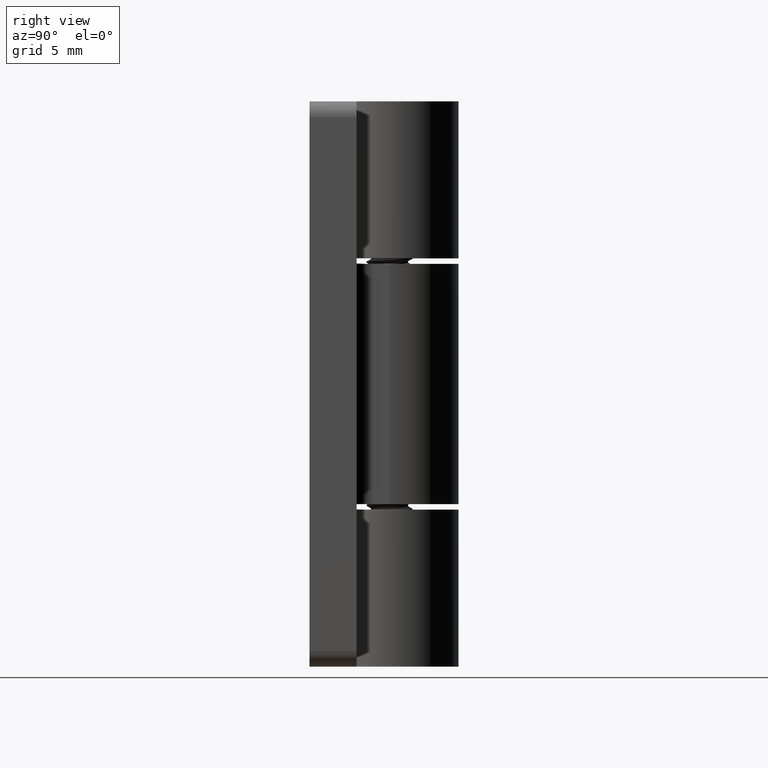
[diagram: clean part render]
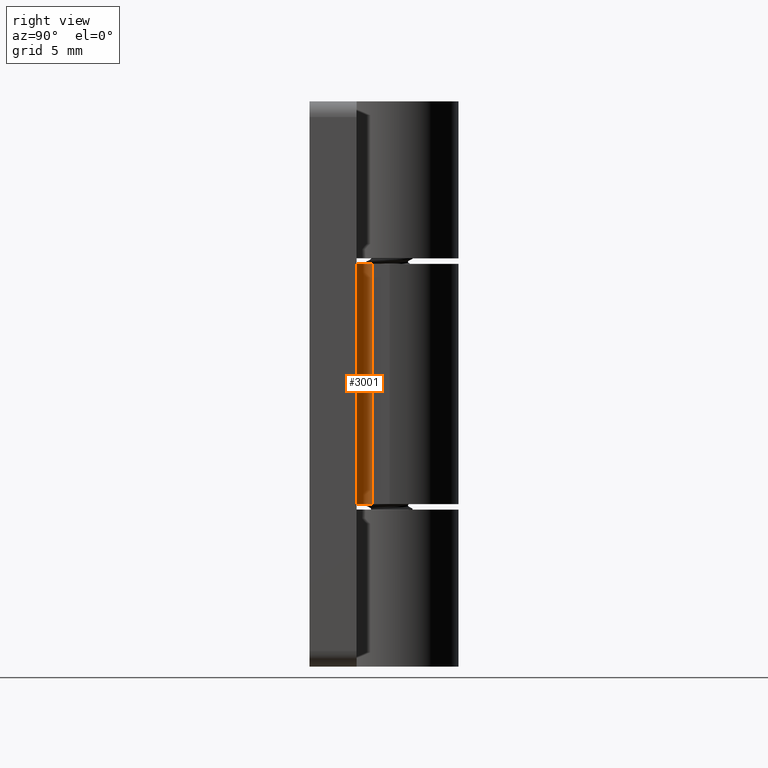
[diagram: same view with one face highlighted and labeled with its STEP entity id]
A machine part, right view. The second image highlights one B-rep face of the part: STEP entity #3001.
In plain terms, the highlighted cylindrical surface (edge-blend (fillet) strip) has radius 1 mm, axis along (0, 0, 1).
Its self-contained STEP definition (entity closure, byte-faithful):
#497=FACE_OUTER_BOUND('',#637,.T.);
#637=EDGE_LOOP('',(#2782,#2783,#2784,#2785));
#791=LINE('',#33456,#947);
#804=LINE('',#33499,#960);
#947=VECTOR('',#3594,15.3);
#960=VECTOR('',#3635,15.3);
#1034=CIRCLE('',#3164,1.);
#1037=CIRCLE('',#3168,1.);
#1412=VERTEX_POINT('',#33453);
#1413=VERTEX_POINT('',#33455);
#1420=VERTEX_POINT('',#33475);
#1425=VERTEX_POINT('',#33487);
#1870=EDGE_CURVE('',#1413,#1412,#791,.T.);
#1880=EDGE_CURVE('',#1420,#1413,#1034,.T.);
#1886=EDGE_CURVE('',#1412,#1425,#1037,.T.);
#1892=EDGE_CURVE('',#1425,#1420,#804,.T.);
#2782=ORIENTED_EDGE('',*,*,#1886,.T.);
#2783=ORIENTED_EDGE('',*,*,#1892,.T.);
#2784=ORIENTED_EDGE('',*,*,#1880,.T.);
#2785=ORIENTED_EDGE('',*,*,#1870,.T.);
#2903=CYLINDRICAL_SURFACE('',#3171,1.);
#3001=ADVANCED_FACE('',(#497),#2903,.F.);
#3164=AXIS2_PLACEMENT_3D('',#33476,#3613,#3614);
#3168=AXIS2_PLACEMENT_3D('',#33488,#3624,#3625);
#3171=AXIS2_PLACEMENT_3D('',#33498,#3633,#3634);
#3594=DIRECTION('',(0.,-1.,0.));
#3613=DIRECTION('center_axis',(0.,1.,0.));
#3614=DIRECTION('ref_axis',(0.707106781186547,0.,-0.707106781186548));
#3624=DIRECTION('center_axis',(0.,-1.,0.));
#3625=DIRECTION('ref_axis',(0.707106781186547,0.,-0.707106781186548));
#3633=DIRECTION('center_axis',(0.,1.,0.));
#3634=DIRECTION('ref_axis',(0.707106781186547,0.,-0.707106781186548));
#3635=DIRECTION('',(0.,1.,0.));
#33453=CARTESIAN_POINT('',(39.5262510638286,-7.65,3.));
#33455=CARTESIAN_POINT('',(39.5262510638286,7.65,3.));
#33456=CARTESIAN_POINT('',(39.5262510638286,0.,3.));
#33475=CARTESIAN_POINT('',(40.5262510638286,7.65,4.));
#33476=CARTESIAN_POINT('Origin',(39.5262510638286,7.65,4.));
#33487=CARTESIAN_POINT('',(40.5262510638286,-7.65,4.));
#33488=CARTESIAN_POINT('Origin',(39.5262510638286,-7.65,4.));
#33498=CARTESIAN_POINT('Origin',(39.5262510638286,0.,4.));
#33499=CARTESIAN_POINT('',(40.5262510638286,0.,4.));